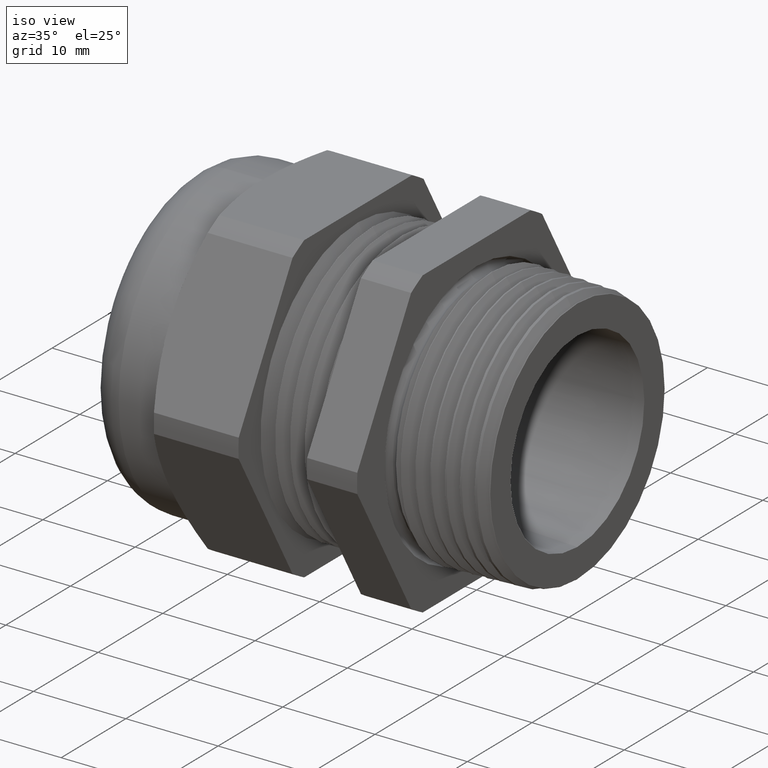
[diagram: clean part render]
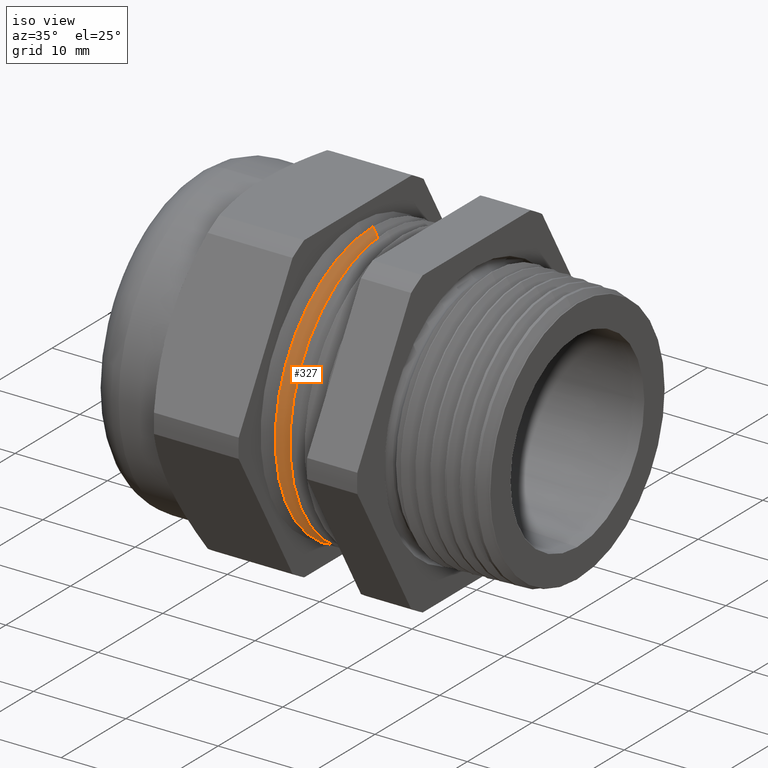
[diagram: same view with one face highlighted and labeled with its STEP entity id]
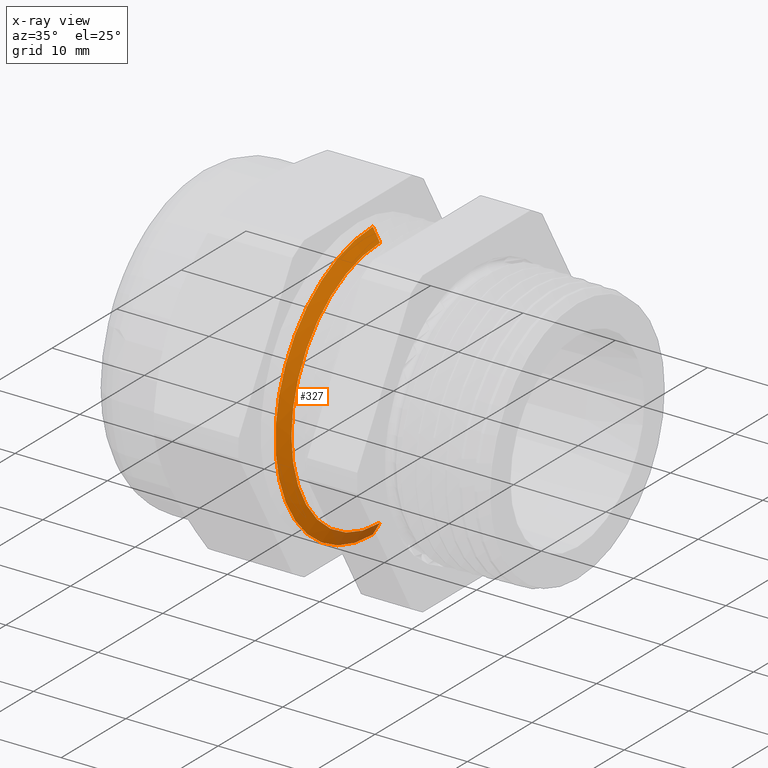
[diagram: x-ray of the same camera — body ghosted, the highlighted face saturated]
A machine part, iso view. The second image highlights one B-rep face of the part: STEP entity #327.
The next image is the same camera in x-ray: the body ghosted, the highlighted face saturated — about 7% of this face is hidden behind the body in this view.
In plain terms, the highlighted conical surface has half-angle 60 deg.
Its self-contained STEP definition (entity closure, byte-faithful):
#228 = EDGE_CURVE ( 'NONE', #857, #797, #1574, .T. ) ;
#324 = EDGE_CURVE ( 'NONE', #794, #793, #1693, .T. ) ;
#327 = ADVANCED_FACE ( 'NONE', ( #1689 ), #1688, .T. ) ;
#328 = EDGE_LOOP ( 'NONE', ( #329, #330, #331, #332 ) ) ;
#329 = ORIENTED_EDGE ( 'NONE', *, *, #796, .F. ) ;
#330 = ORIENTED_EDGE ( 'NONE', *, *, #324, .F. ) ;
#331 = ORIENTED_EDGE ( 'NONE', *, *, #859, .T. ) ;
#332 = ORIENTED_EDGE ( 'NONE', *, *, #228, .T. ) ;
#793 = VERTEX_POINT ( 'NONE', #2506 ) ;
#794 = VERTEX_POINT ( 'NONE', #2505 ) ;
#796 = EDGE_CURVE ( 'NONE', #793, #797, #2504, .T. ) ;
#797 = VERTEX_POINT ( 'NONE', #2500 ) ;
#857 = VERTEX_POINT ( 'NONE', #2641 ) ;
#859 = EDGE_CURVE ( 'NONE', #794, #857, #2640, .T. ) ;
#1566 = DIRECTION ( 'NONE',  ( 0.0000000000000000000, 0.0000000000000000000, -1.000000000000000000 ) ) ;
#1567 = DIRECTION ( 'NONE',  ( 1.000000000000000000, 0.0000000000000000000, 0.0000000000000000000 ) ) ;
#1568 = CARTESIAN_POINT ( 'NONE',  ( -0.4428333333333336900, 0.0000000000000000000, 0.0000000000000000000 ) ) ;
#1569 = AXIS2_PLACEMENT_3D ( 'NONE', #1568, #1567, #1566 ) ;
#1574 = CIRCLE ( 'NONE', #1569, 0.5936000000000000200 ) ;
#1683 = DIRECTION ( 'NONE',  ( 0.0000000000000000000, 0.0000000000000000000, 1.000000000000000000 ) ) ;
#1684 = DIRECTION ( 'NONE',  ( -1.000000000000000000, 0.0000000000000000000, 0.0000000000000000000 ) ) ;
#1685 = CARTESIAN_POINT ( 'NONE',  ( -0.4428333333333336900, 0.0000000000000000000, 0.0000000000000000000 ) ) ;
#1686 = AXIS2_PLACEMENT_3D ( 'NONE', #1685, #1684, #1683 ) ;
#1688 = CONICAL_SURFACE ( 'NONE', #1686, 0.5936000000000000200, 1.047197551196604100 ) ;
#1689 = FACE_OUTER_BOUND ( 'NONE', #328, .T. ) ;
#1690 = DIRECTION ( 'NONE',  ( 0.0000000000000000000, 0.0000000000000000000, -1.000000000000000000 ) ) ;
#1691 = DIRECTION ( 'NONE',  ( 1.000000000000000000, 0.0000000000000000000, 0.0000000000000000000 ) ) ;
#1692 = AXIS2_PLACEMENT_3D ( 'NONE', #1697, #1691, #1690 ) ;
#1693 = CIRCLE ( 'NONE', #1692, 0.5399064500000000400 ) ;
#1697 = CARTESIAN_POINT ( 'NONE',  ( -0.4118333477870874700, 0.0000000000000000000, 0.0000000000000000000 ) ) ;
#2500 = CARTESIAN_POINT ( 'NONE',  ( -0.4428333333333336900, 7.269503399738688800E-017, -0.5936000000000000200 ) ) ;
#2501 = DIRECTION ( 'NONE',  ( -0.4999999999999945000, 1.060575238724910700E-016, -0.8660254037844418200 ) ) ;
#2502 = VECTOR ( 'NONE', #2501, 39.37007874015748100 ) ;
#2503 = CARTESIAN_POINT ( 'NONE',  ( -0.4428333333333336900, 7.269503399738688800E-017, -0.5936000000000000200 ) ) ;
#2504 = LINE ( 'NONE', #2503, #2502 ) ;
#2505 = CARTESIAN_POINT ( 'NONE',  ( -0.4118333477870874700, 6.940725229026897000E-017, 0.5399064500000000400 ) ) ;
#2506 = CARTESIAN_POINT ( 'NONE',  ( -0.4118333477870874700, 0.0000000000000000000, -0.5399064500000000400 ) ) ;
#2637 = DIRECTION ( 'NONE',  ( -0.4999999999999945000, 0.0000000000000000000, 0.8660254037844418200 ) ) ;
#2638 = VECTOR ( 'NONE', #2637, 39.37007874015748100 ) ;
#2639 = CARTESIAN_POINT ( 'NONE',  ( -0.4428333333333336900, 0.0000000000000000000, 0.5936000000000000200 ) ) ;
#2640 = LINE ( 'NONE', #2639, #2638 ) ;
#2641 = CARTESIAN_POINT ( 'NONE',  ( -0.4428333333333336900, 0.0000000000000000000, 0.5936000000000000200 ) ) ;